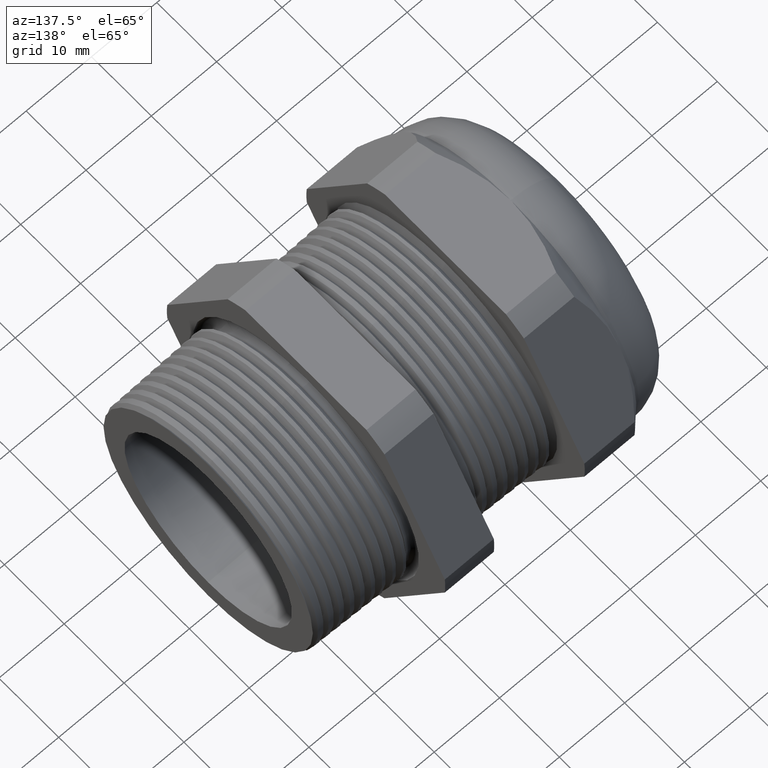
[diagram: clean part render]
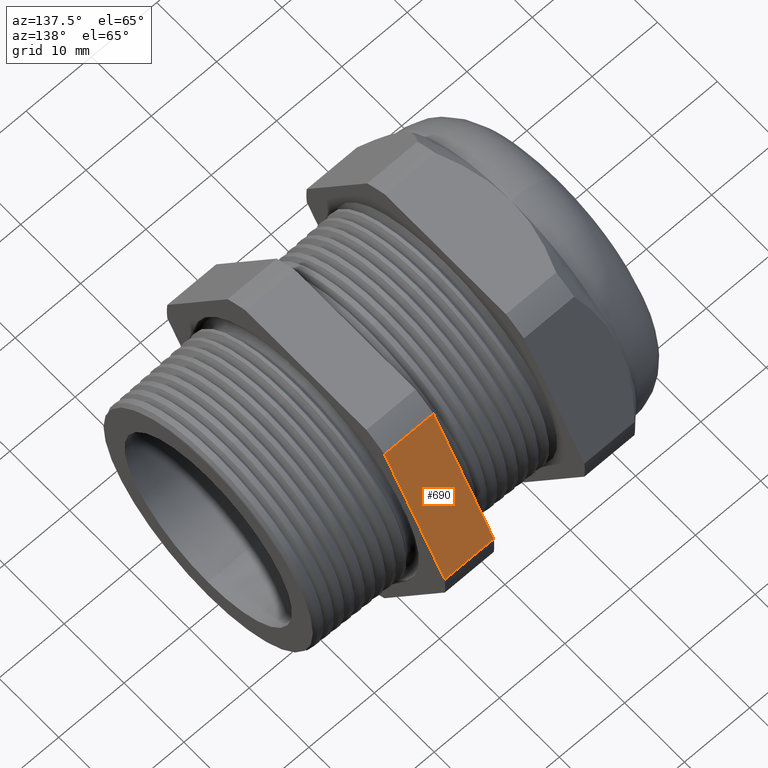
[diagram: same view with one face highlighted and labeled with its STEP entity id]
A machine part, auxiliary view. The second image highlights one B-rep face of the part: STEP entity #690.
In plain terms, the highlighted planar face has unit normal (0, 0.866, 0.5).
Its self-contained STEP definition (entity closure, byte-faithful):
#537 = VERTEX_POINT ( 'NONE', #1848 ) ;
#591 = EDGE_CURVE ( 'NONE', #537, #592, #1938, .T. ) ;
#592 = VERTEX_POINT ( 'NONE', #1934 ) ;
#690 = ADVANCED_FACE ( 'NONE', ( #2113 ), #2108, .T. ) ;
#691 = EDGE_LOOP ( 'NONE', ( #692, #693, #694, #753 ) ) ;
#692 = ORIENTED_EDGE ( 'NONE', *, *, #770, .T. ) ;
#693 = ORIENTED_EDGE ( 'NONE', *, *, #591, .F. ) ;
#694 = ORIENTED_EDGE ( 'NONE', *, *, #695, .F. ) ;
#695 = EDGE_CURVE ( 'NONE', #4529, #537, #2103, .T. ) ;
#753 = ORIENTED_EDGE ( 'NONE', *, *, #4530, .F. ) ;
#770 = EDGE_CURVE ( 'NONE', #4532, #592, #2199, .T. ) ;
#1848 = CARTESIAN_POINT ( 'NONE',  ( -0.6052755905511810800, 0.5157418318598044900, 0.7567089436301736000 ) ) ;
#1934 = CARTESIAN_POINT ( 'NONE',  ( -0.6052755905511810800, 0.9132000843845192700, 0.06829105636982647800 ) ) ;
#1935 = DIRECTION ( 'NONE',  ( 0.0000000000000000000, 0.4999999999999998900, -0.8660254037844386000 ) ) ;
#1936 = VECTOR ( 'NONE', #1935, 39.37007874015748100 ) ;
#1937 = CARTESIAN_POINT ( 'NONE',  ( -0.6052755905511810800, 1.126970958122161900, -0.3019709581221616800 ) ) ;
#1938 = LINE ( 'NONE', #1937, #1936 ) ;
#2100 = DIRECTION ( 'NONE',  ( -1.000000000000000000, 0.0000000000000000000, 0.0000000000000000000 ) ) ;
#2101 = VECTOR ( 'NONE', #2100, 39.37007874015748100 ) ;
#2102 = CARTESIAN_POINT ( 'NONE',  ( 0.2800000000000000300, 0.5157418318598044900, 0.7567089436301736000 ) ) ;
#2103 = LINE ( 'NONE', #2102, #2101 ) ;
#2104 = DIRECTION ( 'NONE',  ( 0.0000000000000000000, -0.4999999999999998900, 0.8660254037844386000 ) ) ;
#2105 = DIRECTION ( 'NONE',  ( 0.0000000000000000000, 0.8660254037844387100, 0.4999999999999999400 ) ) ;
#2106 = CARTESIAN_POINT ( 'NONE',  ( 0.2800000000000000300, 0.5157418318598044900, 0.7567089436301736000 ) ) ;
#2107 = AXIS2_PLACEMENT_3D ( 'NONE', #2106, #2105, #2104 ) ;
#2108 = PLANE ( 'NONE',  #2107 ) ;
#2113 = FACE_OUTER_BOUND ( 'NONE', #691, .T. ) ;
#2196 = DIRECTION ( 'NONE',  ( -1.000000000000000000, 0.0000000000000000000, 0.0000000000000000000 ) ) ;
#2197 = VECTOR ( 'NONE', #2196, 39.37007874015748100 ) ;
#2198 = CARTESIAN_POINT ( 'NONE',  ( 0.2800000000000000300, 0.9132000843845192700, 0.06829105636982647800 ) ) ;
#2199 = LINE ( 'NONE', #2198, #2197 ) ;
#3633 = CARTESIAN_POINT ( 'NONE',  ( -0.3100000000000000000, 0.9132000843845192700, 0.06829105636982647800 ) ) ;
#3634 = DIRECTION ( 'NONE',  ( 0.0000000000000000000, -0.4999999999999998900, 0.8660254037844386000 ) ) ;
#3635 = VECTOR ( 'NONE', #3634, 39.37007874015748100 ) ;
#3636 = CARTESIAN_POINT ( 'NONE',  ( -0.3100000000000000000, 1.126970958122161900, -0.3019709581221618500 ) ) ;
#3637 = LINE ( 'NONE', #3636, #3635 ) ;
#3638 = CARTESIAN_POINT ( 'NONE',  ( -0.3100000000000000000, 0.5157418318598044900, 0.7567089436301736000 ) ) ;
#4529 = VERTEX_POINT ( 'NONE', #3638 ) ;
#4530 = EDGE_CURVE ( 'NONE', #4532, #4529, #3637, .T. ) ;
#4532 = VERTEX_POINT ( 'NONE', #3633 ) ;